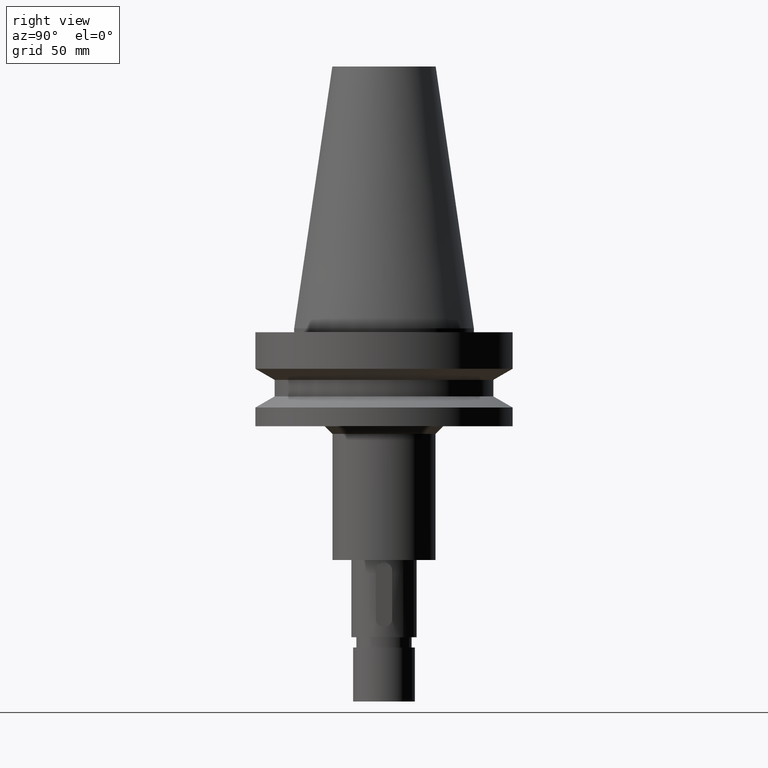
[diagram: clean part render]
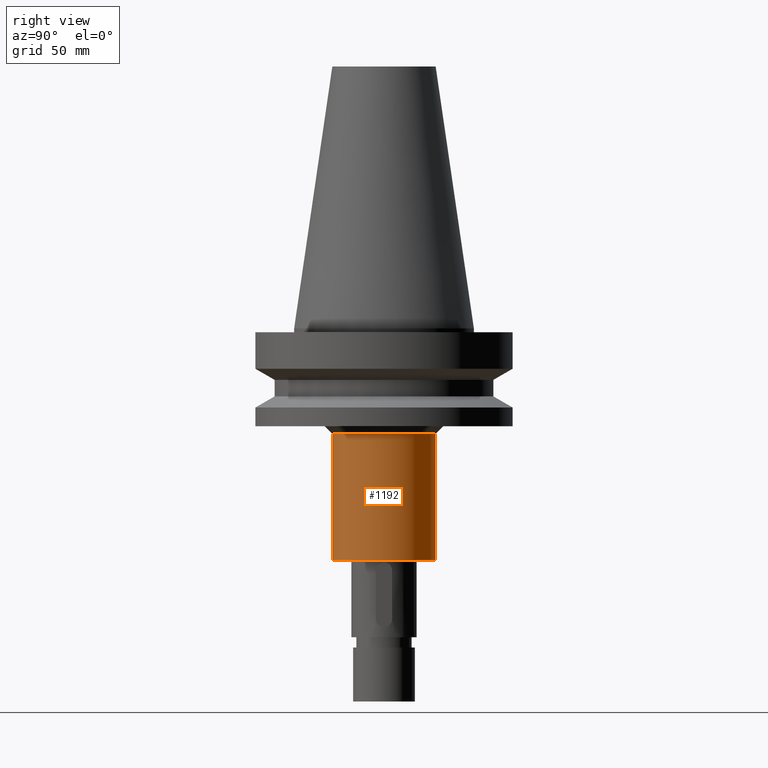
[diagram: same view with one face highlighted and labeled with its STEP entity id]
A machine part, right view. The second image highlights one B-rep face of the part: STEP entity #1192.
In plain terms, the highlighted cylindrical surface (partial cylindrical patch) has radius 20 mm, axis along (0, 0, -1).
Its self-contained STEP definition (entity closure, byte-faithful):
#375=CARTESIAN_POINT('',(0.E0,0.E0,-4.1E1));
#376=DIRECTION('',(0.E0,0.E0,-1.E0));
#377=DIRECTION('',(0.E0,1.E0,0.E0));
#378=AXIS2_PLACEMENT_3D('',#375,#376,#377);
#398=DIRECTION('',(0.E0,0.E0,-1.E0));
#399=VECTOR('',#398,4.9E1);
#400=CARTESIAN_POINT('',(0.E0,-2.E1,-4.1E1));
#401=LINE('',#400,#399);
#405=DIRECTION('',(0.E0,0.E0,-1.E0));
#406=VECTOR('',#405,4.9E1);
#407=CARTESIAN_POINT('',(0.E0,2.E1,-4.1E1));
#408=LINE('',#407,#406);
#420=CARTESIAN_POINT('',(0.E0,2.622458655694E-14,-9.E1));
#421=DIRECTION('',(0.E0,0.E0,1.E0));
#422=DIRECTION('',(0.E0,-1.E0,0.E0));
#423=AXIS2_PLACEMENT_3D('',#420,#421,#422);
#758=CARTESIAN_POINT('',(0.E0,2.E1,-4.1E1));
#759=VERTEX_POINT('',#758);
#760=CARTESIAN_POINT('',(0.E0,-2.E1,-4.1E1));
#761=VERTEX_POINT('',#760);
#762=CARTESIAN_POINT('',(0.E0,2.E1,-9.E1));
#763=VERTEX_POINT('',#762);
#764=CARTESIAN_POINT('',(0.E0,-2.E1,-9.E1));
#765=VERTEX_POINT('',#764);
#1180=CARTESIAN_POINT('',(0.E0,2.622458655694E-14,1.1414E2));
#1181=DIRECTION('',(0.E0,0.E0,-1.E0));
#1182=DIRECTION('',(0.E0,-1.E0,0.E0));
#1183=AXIS2_PLACEMENT_3D('',#1180,#1181,#1182);
#1184=CYLINDRICAL_SURFACE('',#1183,2.E1);
#1185=ORIENTED_EDGE('',*,*,#1170,.T.);
#1187=ORIENTED_EDGE('',*,*,#1186,.F.);
#1188=ORIENTED_EDGE('',*,*,#1173,.F.);
#1189=ORIENTED_EDGE('',*,*,#1144,.F.);
#1190=EDGE_LOOP('',(#1185,#1187,#1188,#1189));
#1191=FACE_OUTER_BOUND('',#1190,.F.);
#379=CIRCLE('',#378,2.E1);
#424=CIRCLE('',#423,2.E1);
#1144=EDGE_CURVE('',#759,#761,#379,.T.);
#1170=EDGE_CURVE('',#759,#763,#408,.T.);
#1173=EDGE_CURVE('',#761,#765,#401,.T.);
#1186=EDGE_CURVE('',#765,#763,#424,.T.);
#1192=ADVANCED_FACE('',(#1191),#1184,.T.);